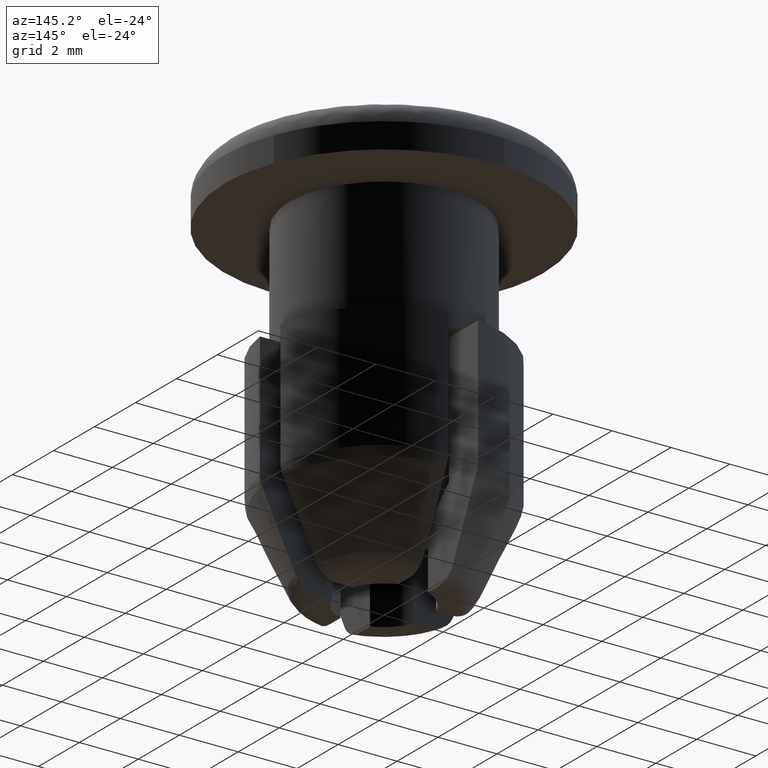
[diagram: clean part render]
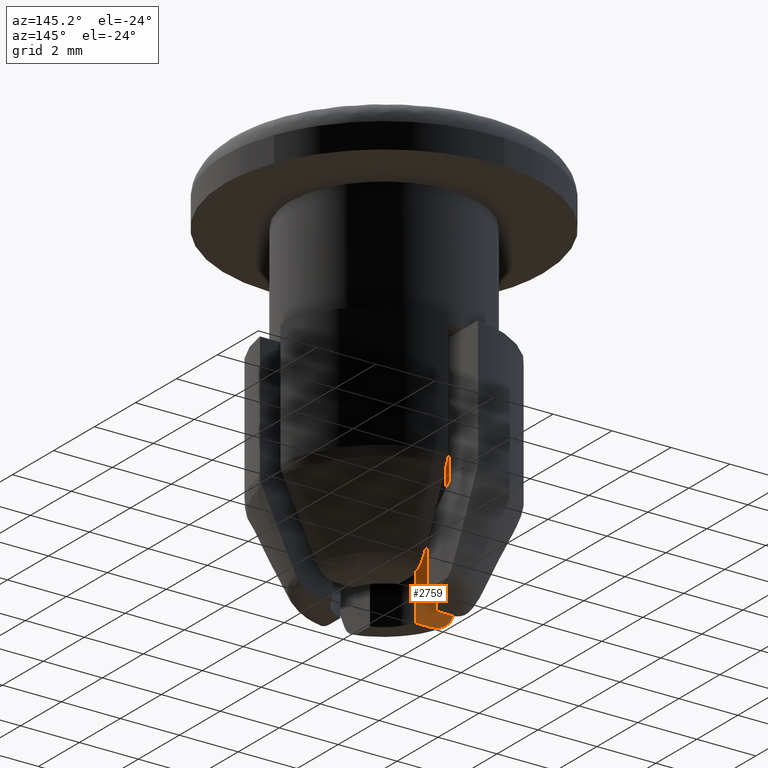
[diagram: same view with one face highlighted and labeled with its STEP entity id]
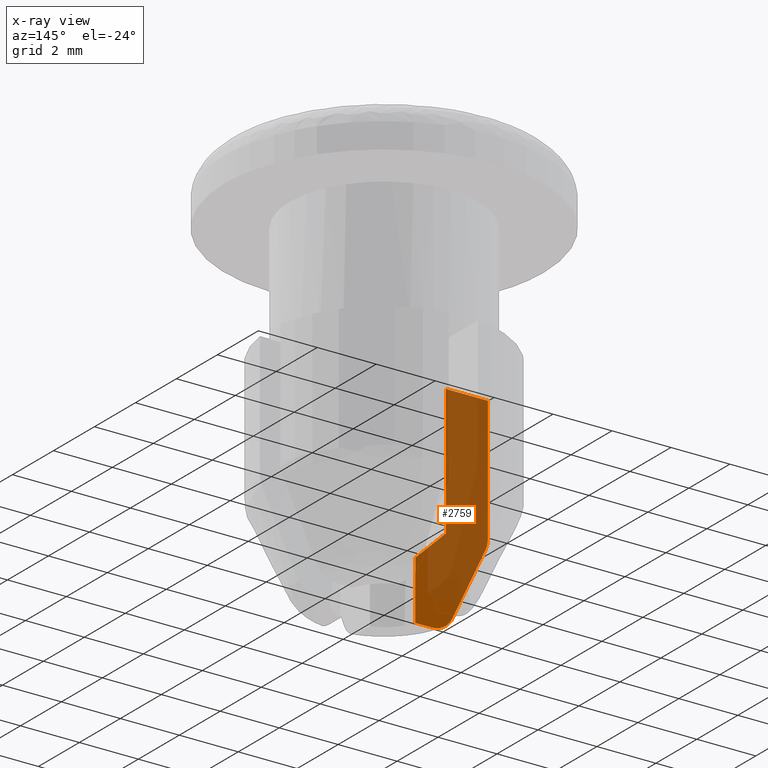
[diagram: x-ray of the same camera — body ghosted, the highlighted face saturated]
A machine part, auxiliary view. The second image highlights one B-rep face of the part: STEP entity #2759.
The next image is the same camera in x-ray: the body ghosted, the highlighted face saturated — about 85% of this face is hidden behind the body in this view.
In plain terms, the highlighted face is a freeform B-spline surface patch.
Its self-contained STEP definition (entity closure, byte-faithful):
#214=CARTESIAN_POINT('',(-2.449489742783175,-0.500000000000011,-10.500363376784501));
#215=VERTEX_POINT('',#214);
#229=CARTESIAN_POINT('',(-2.449489742783175,-0.500000000000011,-6.099999999999901));
#230=VERTEX_POINT('',#229);
#231=CARTESIAN_POINT('',(-2.449489742783175,-0.500000000000011,-6.099999999999901));
#232=CARTESIAN_POINT('',(-2.449489742783175,-0.500000000000011,-10.500363376784501));
#233=QUASI_UNIFORM_CURVE('',1,(#231,#232),.UNSPECIFIED.,.F.,.U.);
#234=EDGE_CURVE('',#230,#215,#233,.T.);
#1040=CARTESIAN_POINT('',(-3.160696125855820,-0.500000000000011,-6.099999999999881));
#1041=VERTEX_POINT('',#1040);
#1293=CARTESIAN_POINT('',(-1.414213562373092,-0.500000000000011,-11.500363376784501));
#1294=VERTEX_POINT('',#1293);
#1308=CARTESIAN_POINT('',(-2.449489742783175,-0.500000000000011,-10.500363376784501));
#1309=CARTESIAN_POINT('',(-2.278090092272441,-0.500000000000011,-10.668300051121570));
#1310=CARTESIAN_POINT('',(-2.106363684585908,-0.500000000000011,-10.835898844652711));
#1311=CARTESIAN_POINT('',(-1.761640950156481,-0.500000000000011,-11.169648331677150));
#1312=CARTESIAN_POINT('',(-1.588691846073222,-0.500000000000011,-11.335863673352341));
#1313=CARTESIAN_POINT('',(-1.414213562373113,-0.500000000000011,-11.500363376784520));
#1314=B_SPLINE_CURVE_WITH_KNOTS('',3,(#1308,#1309,#1310,#1311,#1312,#1313),.UNSPECIFIED.,.F.,.U.,(4,2,4),(0.0,0.500000000000000,1.0),.UNSPECIFIED.);
#1315=EDGE_CURVE('',#215,#1294,#1314,.T.);
#1395=CARTESIAN_POINT('',(-2.449489742783175,-0.500000000000011,-6.099999999999901));
#1396=CARTESIAN_POINT('',(-3.160696125855820,-0.500000000000011,-6.099999999999881));
#1397=QUASI_UNIFORM_CURVE('',1,(#1395,#1396),.UNSPECIFIED.,.F.,.U.);
#1398=EDGE_CURVE('',#230,#1041,#1397,.T.);
#1661=CARTESIAN_POINT('',(-1.414213562373092,-0.500000000000011,-13.500299999999999));
#1662=VERTEX_POINT('',#1661);
#1663=CARTESIAN_POINT('',(-1.959617758645800,-0.500000000000011,-13.500299999999999));
#1664=VERTEX_POINT('',#1663);
#1665=CARTESIAN_POINT('',(-1.414213562373092,-0.500000000000011,-13.500299999999999));
#1666=CARTESIAN_POINT('',(-1.959617758645800,-0.500000000000011,-13.500299999999999));
#1667=QUASI_UNIFORM_CURVE('',1,(#1665,#1666),.UNSPECIFIED.,.F.,.U.);
#1668=EDGE_CURVE('',#1662,#1664,#1667,.T.);
#1953=CARTESIAN_POINT('',(-2.659426441463185,-0.500000000000011,-13.058784187289120));
#1954=VERTEX_POINT('',#1953);
#1955=CARTESIAN_POINT('',(-1.959617758645799,-0.500000000000011,-13.500300000000021));
#1956=CARTESIAN_POINT('',(-1.995823455455136,-0.500000000000011,-13.500300000000021));
#1957=CARTESIAN_POINT('',(-2.032168659936571,-0.500000000000011,-13.497844931992930));
#1958=CARTESIAN_POINT('',(-2.104869055386866,-0.500000000000011,-13.487786332538890));
#1959=CARTESIAN_POINT('',(-2.176013322733382,-0.500000000000011,-13.472807805564530));
#1960=CARTESIAN_POINT('',(-2.244138393684843,-0.500000000000011,-13.448283645812721));
#1961=CARTESIAN_POINT('',(-2.310711251612077,-0.500000000000011,-13.418851936639530));
#1962=CARTESIAN_POINT('',(-2.343337478162506,-0.500000000000011,-13.401574181780081));
#1963=CARTESIAN_POINT('',(-2.436230927294215,-0.500000000000011,-13.343461680954229));
#1964=CARTESIAN_POINT('',(-2.492802500481643,-0.500000000000011,-13.295482418711700));
#1965=CARTESIAN_POINT('',(-2.564682214461838,-0.500000000000011,-13.214009020161450));
#1966=CARTESIAN_POINT('',(-2.586650494122338,-0.500000000000011,-13.185172484234741));
#1967=CARTESIAN_POINT('',(-2.626488200145422,-0.500000000000011,-13.124044497790580));
#1968=CARTESIAN_POINT('',(-2.644286517711231,-0.500000000000011,-13.091757527095350));
#1969=CARTESIAN_POINT('',(-2.659426441463185,-0.500000000000011,-13.058784187289120));
#1970=B_SPLINE_CURVE_WITH_KNOTS('',3,(#1955,#1956,#1957,#1958,#1959,#1960,#1961,#1962,#1963,#1964,#1965,#1966,#1967,#1968,#1969),.UNSPECIFIED.,.F.,.U.,(4,2,1,2,2,2,2,4),(0.0,0.125000000000000,0.250000000000001,0.375000000000001,0.500000000000002,0.750000000000003,0.875000000000001,1.0),.UNSPECIFIED.);
#1971=EDGE_CURVE('',#1664,#1954,#1970,.T.);
#2176=CARTESIAN_POINT('',(-3.796920079485475,-0.500000000000011,-10.650999999999881));
#2177=VERTEX_POINT('',#2176);
#2178=CARTESIAN_POINT('',(-2.659426441463185,-0.500000000000011,-13.058784187289120));
#2179=CARTESIAN_POINT('',(-3.040188665878831,-0.500000000000011,-12.256947466626819));
#2180=CARTESIAN_POINT('',(-3.418877603597242,-0.500000000000011,-11.454123893196201));
#2181=CARTESIAN_POINT('',(-3.796920079485476,-0.500000000000011,-10.650999999999881));
#2182=QUASI_UNIFORM_CURVE('',3,(#2178,#2179,#2180,#2181),.UNSPECIFIED.,.F.,.U.);
#2183=EDGE_CURVE('',#1954,#2177,#2182,.T.);
#2409=CARTESIAN_POINT('',(-3.867815921162775,-0.500000000000011,-10.333900000000000));
#2410=VERTEX_POINT('',#2409);
#2411=CARTESIAN_POINT('',(-3.796920079485480,-0.500000000000011,-10.650999999999881));
#2412=CARTESIAN_POINT('',(-3.808596462737798,-0.500000000000011,-10.626194368426290));
#2413=CARTESIAN_POINT('',(-3.818871036125389,-0.500000000000011,-10.600828270890030));
#2414=CARTESIAN_POINT('',(-3.836616127592320,-0.500000000000011,-10.548974969740840));
#2415=CARTESIAN_POINT('',(-3.844099152760858,-0.500000000000011,-10.522380077297161));
#2416=CARTESIAN_POINT('',(-3.861909863715340,-0.500000000000011,-10.442410075564940));
#2417=CARTESIAN_POINT('',(-3.867832811089720,-0.500000000000011,-10.388468551020390));
#2418=CARTESIAN_POINT('',(-3.867815921162763,-0.500000000000011,-10.333900000000000));
#2419=B_SPLINE_CURVE_WITH_KNOTS('',3,(#2411,#2412,#2413,#2414,#2415,#2416,#2417,#2418),.UNSPECIFIED.,.F.,.U.,(4,2,2,4),(0.0,0.250000000000004,0.500000000000008,1.0),.UNSPECIFIED.);
#2420=EDGE_CURVE('',#2177,#2410,#2419,.T.);
#2603=CARTESIAN_POINT('',(-3.867815921162740,-0.500000000000011,-6.099999999999901));
#2604=VERTEX_POINT('',#2603);
#2605=CARTESIAN_POINT('',(-3.867815921162775,-0.500000000000011,-10.333900000000000));
#2606=CARTESIAN_POINT('',(-3.867815921162740,-0.500000000000011,-6.099999999999901));
#2607=QUASI_UNIFORM_CURVE('',1,(#2605,#2606),.UNSPECIFIED.,.F.,.U.);
#2608=EDGE_CURVE('',#2410,#2604,#2607,.T.);
#2700=CARTESIAN_POINT('',(-3.160696125855820,-0.500000000000011,-6.099999999999881));
#2701=CARTESIAN_POINT('',(-3.867815921162740,-0.500000000000011,-6.099999999999901));
#2702=QUASI_UNIFORM_CURVE('',1,(#2700,#2701),.UNSPECIFIED.,.F.,.U.);
#2703=EDGE_CURVE('',#1041,#2604,#2702,.T.);
#2738=CARTESIAN_POINT('',(-3.990373423326753,-0.500000000000011,-13.869945387469119));
#2739=CARTESIAN_POINT('',(-3.990373423326753,-0.500000000000011,-5.730354811022276));
#2740=CARTESIAN_POINT('',(-1.291656060209115,-0.500000000000011,-13.869945387469119));
#2741=CARTESIAN_POINT('',(-1.291656060209115,-0.500000000000011,-5.730354811022276));
#2742=B_SPLINE_SURFACE_WITH_KNOTS('',1,1,((#2738,#2740),(#2739,#2741)),.UNSPECIFIED.,.F.,.F.,.U.,(2,2),(2,2),(0.0,8.139590576446842),(0.0,2.698717363117638),.UNSPECIFIED.);
#2743=ORIENTED_EDGE('',*,*,#1398,.F.);
#2744=ORIENTED_EDGE('',*,*,#234,.T.);
#2745=ORIENTED_EDGE('',*,*,#1315,.T.);
#2746=CARTESIAN_POINT('',(-1.414213562373092,-0.500000000000011,-11.500363376784501));
#2747=CARTESIAN_POINT('',(-1.414213562373092,-0.500000000000011,-13.500299999999999));
#2748=QUASI_UNIFORM_CURVE('',1,(#2746,#2747),.UNSPECIFIED.,.F.,.U.);
#2749=EDGE_CURVE('',#1294,#1662,#2748,.T.);
#2750=ORIENTED_EDGE('',*,*,#2749,.T.);
#2751=ORIENTED_EDGE('',*,*,#1668,.T.);
#2752=ORIENTED_EDGE('',*,*,#1971,.T.);
#2753=ORIENTED_EDGE('',*,*,#2183,.T.);
#2754=ORIENTED_EDGE('',*,*,#2420,.T.);
#2755=ORIENTED_EDGE('',*,*,#2608,.T.);
#2756=ORIENTED_EDGE('',*,*,#2703,.F.);
#2757=EDGE_LOOP('',(#2743,#2744,#2745,#2750,#2751,#2752,#2753,#2754,#2755,#2756));
#2758=FACE_OUTER_BOUND('',#2757,.T.);
#2759=ADVANCED_FACE('',(#2758),#2742,.T.);